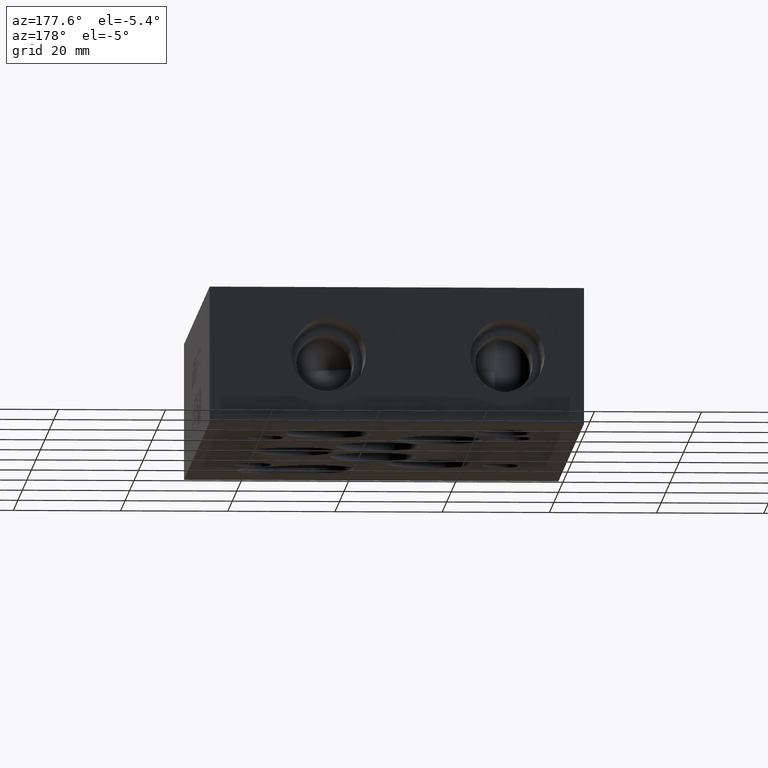
[diagram: clean part render]
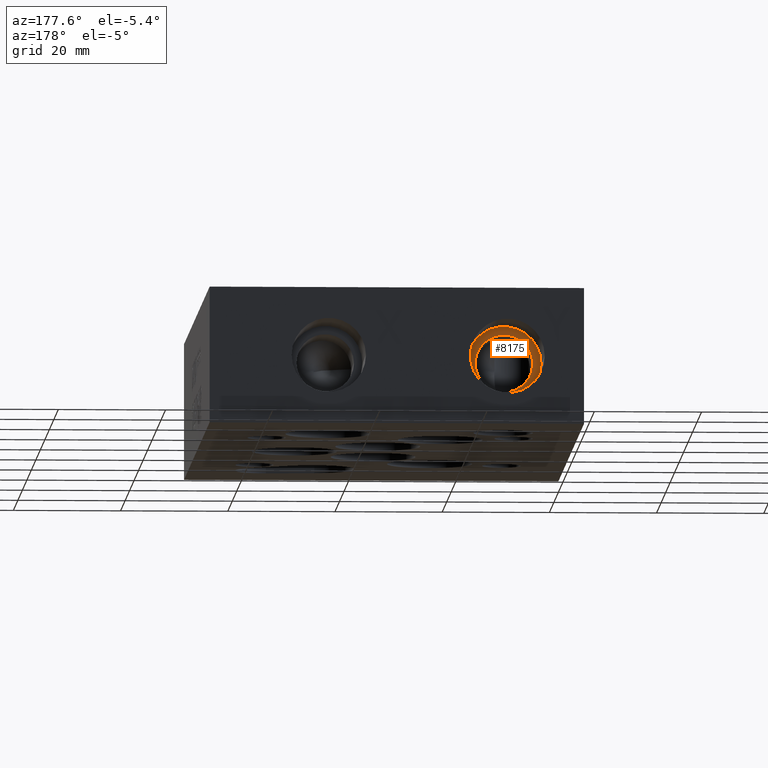
[diagram: same view with one face highlighted and labeled with its STEP entity id]
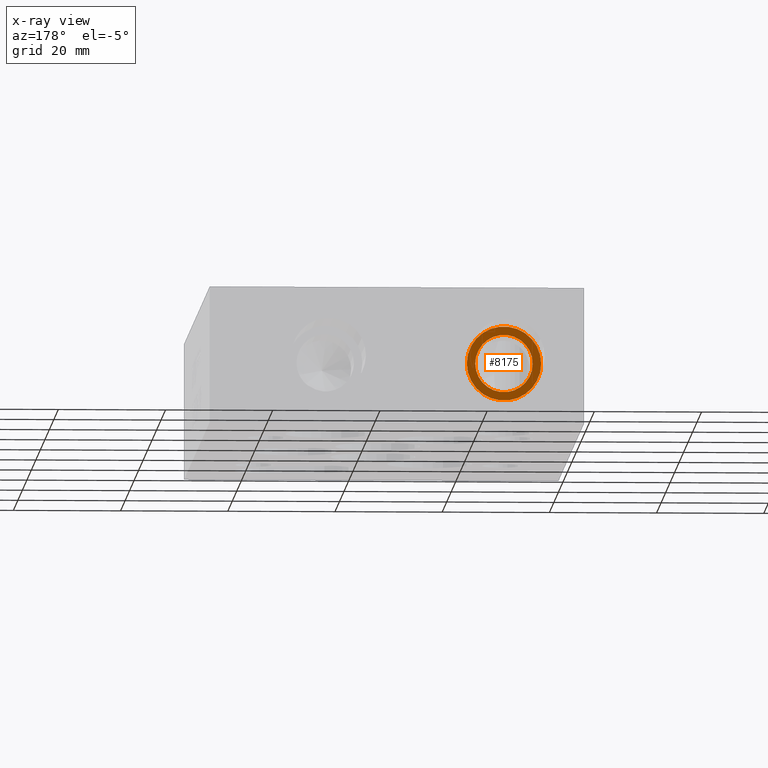
[diagram: x-ray of the same camera — body ghosted, the highlighted face saturated]
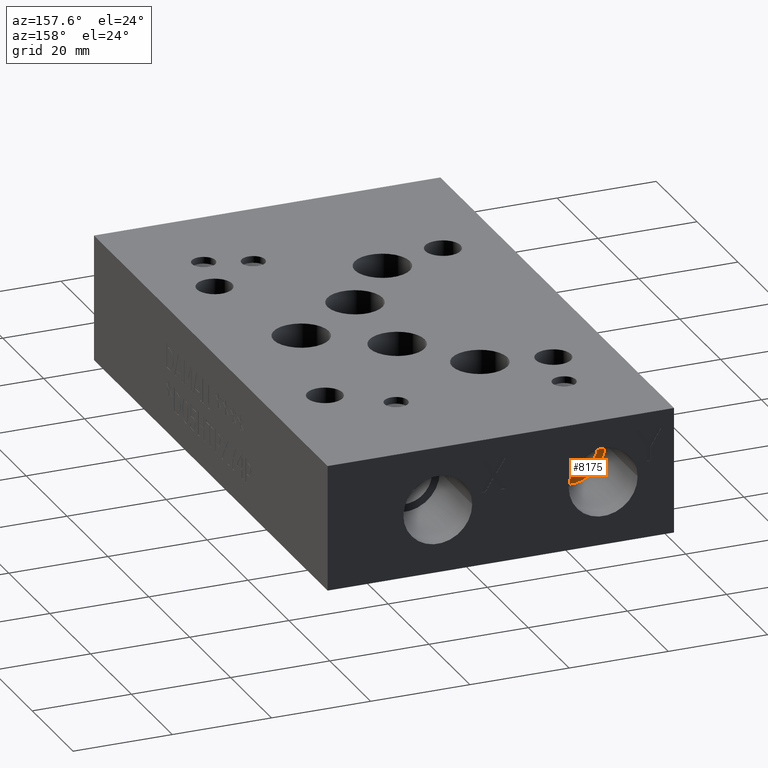
[diagram: same view with one face highlighted and labeled with its STEP entity id]
A machine part, auxiliary view. The second image highlights one B-rep face of the part: STEP entity #8175.
The next image is the same camera in x-ray: the body ghosted, the highlighted face saturated — about 0% of this face is hidden behind the body in this view.
A second angle (auxiliary view) of the same face is appended — the face is thin or edge-on in the first view.
In plain terms, the highlighted planar face has unit normal (0, -1, 0).
Its self-contained STEP definition (entity closure, byte-faithful):
#603=FACE_BOUND('',#1577,.T.);
#653=CIRCLE('',#8556,5.3594);
#676=CIRCLE('',#8602,6.9342);
#1112=FACE_OUTER_BOUND('',#1576,.T.);
#1576=EDGE_LOOP('',(#7357));
#1577=EDGE_LOOP('',(#7358));
#4129=VERTEX_POINT('',#13339);
#4152=VERTEX_POINT('',#13423);
#5202=EDGE_CURVE('',#4129,#4129,#653,.T.);
#5241=EDGE_CURVE('',#4152,#4152,#676,.T.);
#7357=ORIENTED_EDGE('',*,*,#5241,.F.);
#7358=ORIENTED_EDGE('',*,*,#5202,.T.);
#7775=PLANE('',#8603);
#8175=ADVANCED_FACE('',(#1112,#603),#7775,.F.);
#8556=AXIS2_PLACEMENT_3D('',#13340,#10203,#10204);
#8602=AXIS2_PLACEMENT_3D('',#13425,#10311,#10312);
#8603=AXIS2_PLACEMENT_3D('',#13426,#10313,#10314);
#10203=DIRECTION('center_axis',(0.,-1.,0.));
#10204=DIRECTION('ref_axis',(1.,0.,0.));
#10311=DIRECTION('center_axis',(0.,-1.,0.));
#10312=DIRECTION('ref_axis',(1.,0.,0.));
#10313=DIRECTION('center_axis',(0.,-1.,0.));
#10314=DIRECTION('ref_axis',(0.,0.,-1.));
#13339=CARTESIAN_POINT('',(8.9154,98.425,12.7));
#13340=CARTESIAN_POINT('Origin',(14.2748,98.425,12.7));
#13423=CARTESIAN_POINT('',(7.3406,98.425,12.7));
#13425=CARTESIAN_POINT('Origin',(14.2748,98.425,12.7));
#13426=CARTESIAN_POINT('Origin',(19.6342,98.425,12.7));